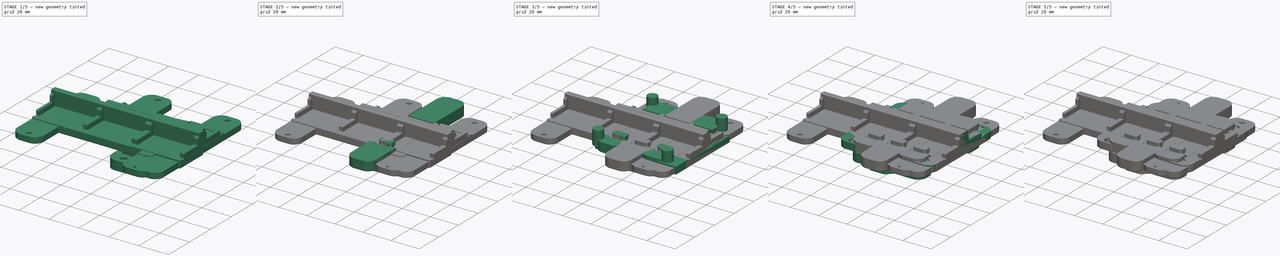
[diagram: build sequence overview — one tinted view per stage of 5, left to right]
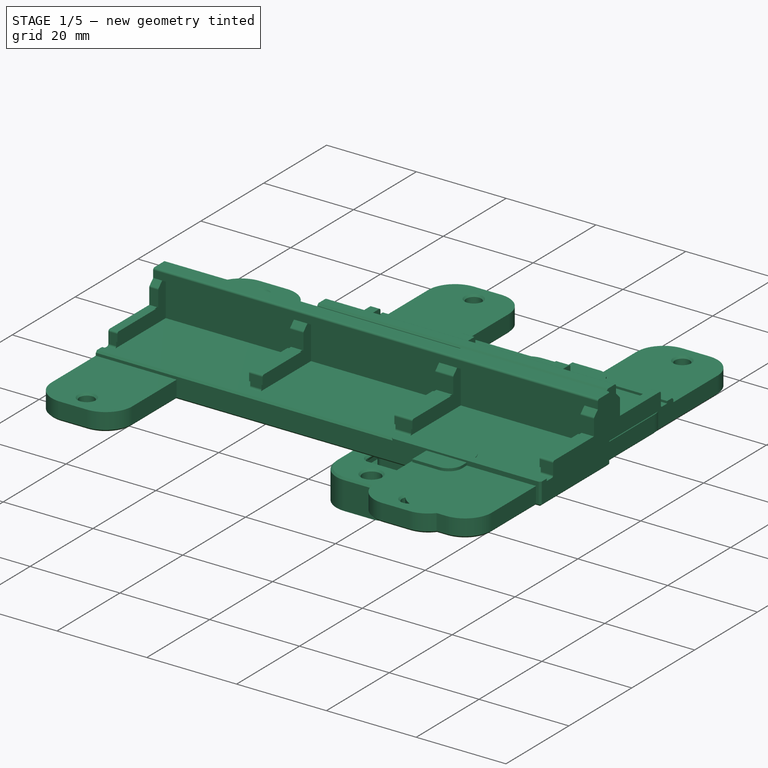
[diagram: stage 1 of 5 — iso view after this stage's code; geometry added in this stage tinted green]
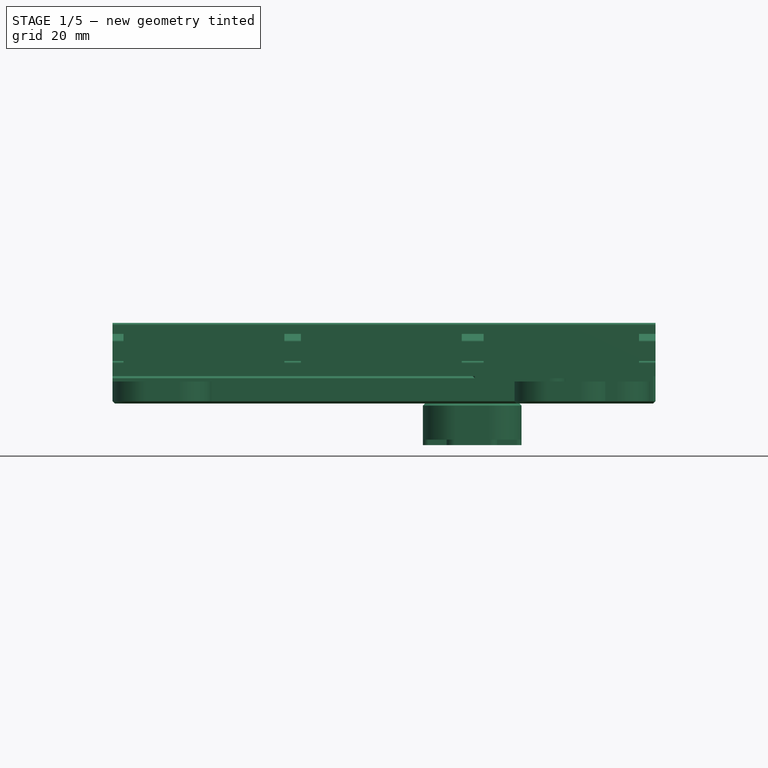
[diagram: stage 1 of 5 — front view after this stage's code; geometry added in this stage tinted green]
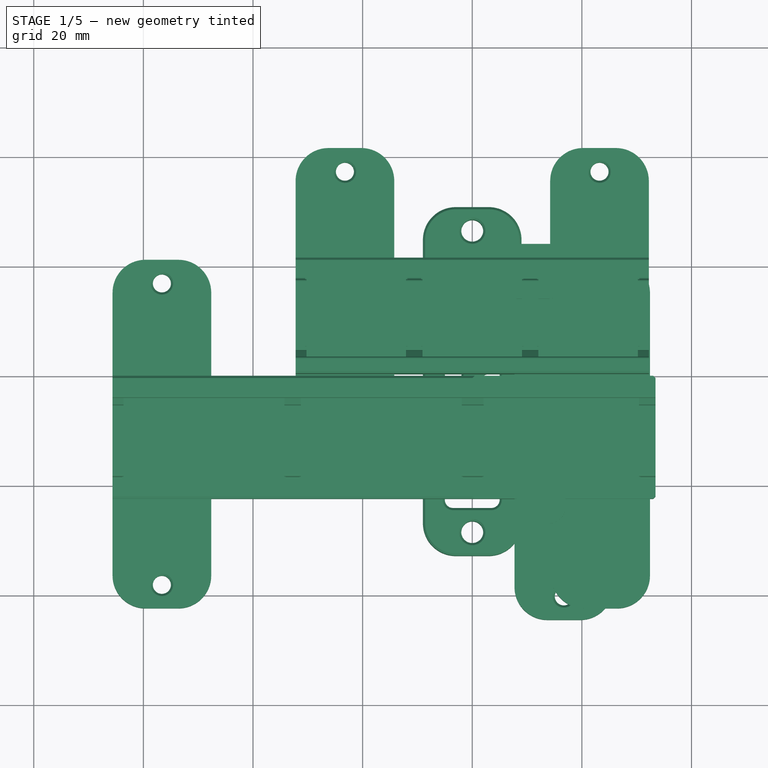
[diagram: stage 1 of 5 — top view after this stage's code; geometry added in this stage tinted green]
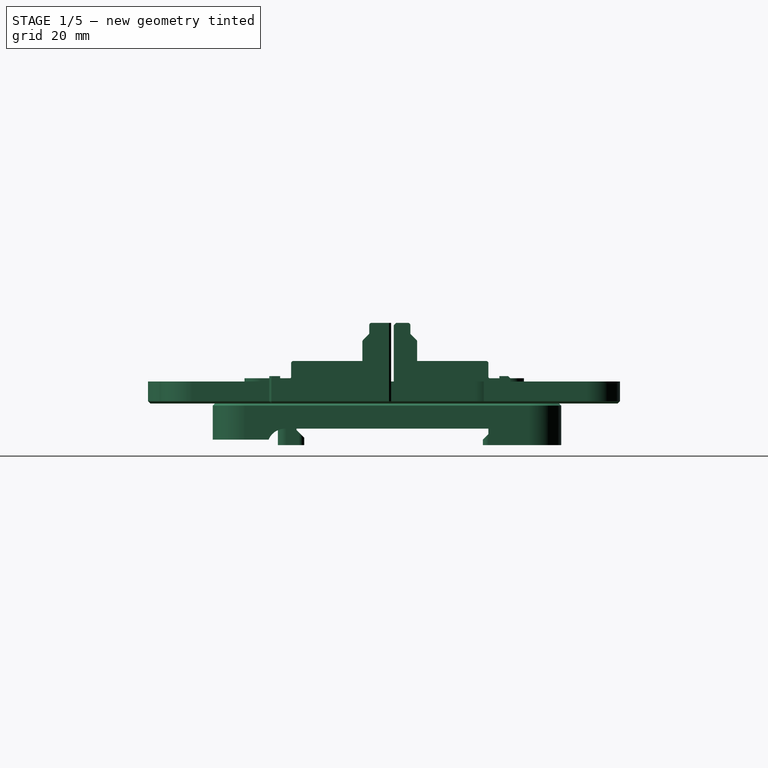
[diagram: stage 1 of 5 — right view after this stage's code; geometry added in this stage tinted green]
FCSTD DOCUMENT  (FreeCAD 0.19R24366 (Git))
Label: din-mounter-alt
License: Other
LicenseURL: GPL3
objects: Part::Feature×23, Part::Box×21, Part::MultiFuse×17, Part::Cylinder×16, Part::Chamfer×15, Part::Cut×10, Part::Fillet×6, PartDesign::FeatureBase×4, Sketcher::SketchObject×4, PartDesign::Chamfer×4, PartDesign::Body×4, PartDesign::Pad×3, PartDesign::Fillet×3, PartDesign::Pocket×1
note: 142 computed .brp shape members not serialized (recipe doc carries the construction recipe); baked Part::Feature solids carry a one-line shape summary decoded from their .brp

FEATURE [Part::Feature] Cut002001010001  label="cable-mounter001"
  shape: bbox 18 x 99 x 7.603 mm, 279 faces (baked)
FEATURE [Part::Box] Box019  label="Cube019"
  AttacherType = Attacher::AttachEngine3D
  Height = 4.6
  Length = 9
  Placement = pos=(8,-27,0) rot=(0,0,1;0rad)
  Width = 10
FEATURE [Part::Box] Box020  label="Cube020"
  AttacherType = Attacher::AttachEngine3D
  Height = 4.6
  Length = 9
  Placement = pos=(8,14,0) rot=(0,0,1;0rad)
  Width = 10
FEATURE [Part::MultiFuse] Fusion006002011004053036004001028003005019004
  Shapes = -> [Box020,Box019]
FEATURE [Part::Fillet] Fillet005
  Base = -> Fusion006002011004053036004001028003005019004
  Edges = 4 edges r=3: [Edge5,Edge7,Edge17,Edge19]
FEATURE [Part::Chamfer] Chamfer013002
  Base = -> Fillet005
  Edges = 10 edges r=0.4: [Edge3,Edge10,Edge12,Edge14,Edge16,Edge21,Edge28,Edge30,Edge32,Edge34]
FEATURE [PartDesign::FeatureBase] BaseFeature
  BaseFeature = -> Body004012001
FEATURE [Sketcher::SketchObject] Sketch
  FullyConstrained = true
  MapMode = 5
  Placement = pos=(0,0,0.0031494) rot=(0,0,1;0rad)
  Support = -> [BaseFeature]
  sketch-geometry (2):
    g0: Circle CenterX=0 CenterY=26.5 CenterZ=0 NormalX=0 NormalY=0 NormalZ=1 AngleXU=0 Radius=2
    g1: Circle CenterX=0 CenterY=-28.5 CenterZ=0 NormalX=0 NormalY=0 NormalZ=1 AngleXU=0 Radius=2
  constraints (6):
    c: PointOnObject(g0,g-2)
    c: PointOnObject(g1,g-2)
    c: DistanceY(g1,g0) = 55
    c: Equal(g1,g0)
    c: Radius(g0) = 2
    c: DistanceY(g1,g-1) = 28.5
FEATURE [PartDesign::Pocket] Pocket
  BaseFeature = -> BaseFeature
  Length = 5
  Length2 = 100
  Profile = -> Sketch
  Type = 1
FEATURE [PartDesign::Chamfer] Chamfer013003
  Angle = 45
  Base = -> Pocket [Edge17,Edge16]
  BaseFeature = -> Pocket
  ChamferType = 0
  FlipDirection = false
  Size = 0.4
  Size2 = 1
  SupportTransform = false
FEATURE [PartDesign::Body] Body  label="generic-din-addon"
  BaseFeature = -> Body004012001
  Group = -> [BaseFeature,Sketch,Pocket,Chamfer013003]
  Origin = -> Origin
  Tip = -> Chamfer013003
FEATURE [Part::Feature] Fusion006002011004053036004001028003005019006002002001  label="relay-mounter"
  shape: bbox 63.6 x 53.7 x 7.603 mm, 374 faces (baked)
FEATURE [Part::Feature] Body004012005001  label="wago5-slot-base"
  shape: bbox 33.35 x 22.25 x 14.7 mm, 45 faces (baked)
FEATURE [Part::Feature] Body004012005002001  label="wago3-slot-base"
  shape: bbox 22.15 x 21.26 x 14.7 mm, 41 faces (baked)
FEATURE [Part::Feature] Fusion006002011004053036004001028003005019006002002002001  label="wago555-base"
  shape: bbox 98.05 x 22.25 x 14.7 mm, 87 faces (baked)
FEATURE [PartDesign::FeatureBase] BaseFeature001
  BaseFeature = -> Fusion006002011004053036004001028003005019006002002002001
FEATURE [Sketcher::SketchObject] Sketch001
  ExternalGeometry = -> [BaseFeature001]
  FullyConstrained = true
  MapMode = 5
  Placement = pos=(0,0,-5.89e-14) rot=(1,0,0;3.14159rad)
  Support = -> [BaseFeature001]
  sketch-geometry (12):
    g0: LineSegment StartX=-65.625 StartY=42.4914 StartZ=0 EndX=-47.625 EndY=42.4914 EndZ=0
    g1: LineSegment StartX=-47.625 StartY=42.4914 StartZ=0 EndX=-47.625 EndY=-21.1086 EndZ=0
    g2: LineSegment StartX=-47.625 StartY=-21.1086 StartZ=0 EndX=-65.625 EndY=-21.1086 EndZ=0
    g3: LineSegment StartX=-65.625 StartY=-21.1086 StartZ=0 EndX=-65.625 EndY=42.4914 EndZ=0
    g4: LineSegment StartX=14.425 StartY=42.4914 StartZ=0 EndX=32.425 EndY=42.4914 EndZ=0
    g5: LineSegment StartX=32.425 StartY=42.4914 StartZ=0 EndX=32.425 EndY=-21.1086 EndZ=0
    g6: LineSegment StartX=32.425 StartY=-21.1086 StartZ=0 EndX=14.425 EndY=-21.1086 EndZ=0
    g7: LineSegment StartX=14.425 StartY=-21.1086 StartZ=0 EndX=14.425 EndY=42.4914 EndZ=0
    g8: Circle CenterX=-56.625 CenterY=38.1914 CenterZ=0 NormalX=0 NormalY=0 NormalZ=1 AngleXU=0 Radius=1.65
    g9: Circle CenterX=-56.625 CenterY=-16.8086 CenterZ=0 NormalX=0 NormalY=0 NormalZ=1 AngleXU=0 Radius=1.65
    g10: Circle CenterX=23.425 CenterY=38.1914 CenterZ=0 NormalX=0 NormalY=0 NormalZ=1 AngleXU=0 Radius=1.65
    g11: Circle CenterX=23.425 CenterY=-16.8086 CenterZ=0 NormalX=0 NormalY=0 NormalZ=1 AngleXU=0 Radius=1.65
  constraints (36):
    c: Coincident(g0,g1)
    c: Coincident(g1,g2)
    c: Coincident(g2,g3)
    c: Coincident(g3,g0)
    c: Horizontal(g0)
    c: Horizontal(g2)
    c: Vertical(g1)
    c: Vertical(g3)
    c: Coincident(g4,g5)
    c: Coincident(g5,g6)
    c: Coincident(g6,g7)
    c: Coincident(g7,g4)
    c: Horizontal(g4)
    c: Horizontal(g6)
    c: Vertical(g5)
    c: Vertical(g7)
    c: Horizontal(g6,g1)
    c: Horizontal(g0,g4)
    c: Equal(g0,g4)
    c: Vertical(g0,g-3)
    c: Vertical(g4,g-4)
    c: DistanceY(g3,g3) = 63.6
    c: Horizontal(g11,g9)
    c: Horizontal(g8,g10)
    c: Vertical(g8,g9)
    c: Vertical(g11,g10)
    c: DistanceX(g0,g8) = 9
    c: DistanceX(g10,g4) = 9
    c: DistanceY(g8,g0) = 4.3
    c: DistanceY(g2,g9) = 4.3
    c: Equal(g9,g8)
    c: Equal(g8,g11)
    c: Equal(g11,g10)
    c: DistanceX(g4,g4) = 18
    c: Radius(g8) = 1.65
    c: DistanceY(g-3,g0) = 20
FEATURE [PartDesign::Pad] Pad
  BaseFeature = -> BaseFeature001
  Direction = (1,1,1)
  Length = 4
  Length2 = 100
  Profile = -> Sketch001
  Reversed = true
  Type = 0
FEATURE [PartDesign::Fillet] Fillet006
  Base = -> Pad [Edge219,Edge116,Edge121,Edge221,Edge215,Edge204,Edge213,Edge225]
  BaseFeature = -> Pad
  Radius = 6
  Refine = true
  SupportTransform = false
FEATURE [PartDesign::Chamfer] Chamfer013004
  Angle = 45
  Base = -> Fillet006 [Face110,Edge10,Edge17,Edge42,Edge228,Edge27,Edge103]
  BaseFeature = -> Fillet006
  ChamferType = 0
  FlipDirection = false
  Size = 0.4
  Size2 = 1
  SupportTransform = false
FEATURE [PartDesign::Body] Body004012005002002  label="wago555-din-mounter"
  BaseFeature = -> Fusion006002011004053036004001028003005019006002002002001
  Group = -> [BaseFeature001,Sketch001,Pad,Fillet006,Chamfer013004]
  Origin = -> Origin001
  Tip = -> Chamfer013004
FEATURE [Part::Feature] Fusion006002011004053036004001028003005019006002002002002001  label="wago333-base"
  shape: bbox 64.45 x 21.26 x 14.7 mm, 87 faces (baked)
FEATURE [PartDesign::FeatureBase] BaseFeature002
  BaseFeature = -> Fusion006002011004053036004001028003005019006002002002002001
FEATURE [Sketcher::SketchObject] Sketch002
  ExternalGeometry = -> [BaseFeature002]
  FullyConstrained = true
  MapMode = 5
  Placement = pos=(0,0,3.61e-14) rot=(1,0,0;3.14159rad)
  Support = -> [BaseFeature002]
  sketch-geometry (12):
    g0: LineSegment StartX=-32.23 StartY=22.1 StartZ=0 EndX=-14.23 EndY=22.1 EndZ=0
    g1: LineSegment StartX=-14.23 StartY=22.1 StartZ=0 EndX=-14.23 EndY=-41.5 EndZ=0
    g2: LineSegment StartX=-14.23 StartY=-41.5 StartZ=0 EndX=-32.23 EndY=-41.5 EndZ=0
    g3: LineSegment StartX=-32.23 StartY=-41.5 StartZ=0 EndX=-32.23 EndY=22.1 EndZ=0
    g4: LineSegment StartX=14.22 StartY=22.1 StartZ=0 EndX=32.22 EndY=22.1 EndZ=0
    g5: LineSegment StartX=32.22 StartY=22.1 StartZ=0 EndX=32.22 EndY=-41.5 EndZ=0
    g6: LineSegment StartX=32.22 StartY=-41.5 StartZ=0 EndX=14.22 EndY=-41.5 EndZ=0
    g7: LineSegment StartX=14.22 StartY=-41.5 StartZ=0 EndX=14.22 EndY=22.1 EndZ=0
    g8: Circle CenterX=-23.23 CenterY=17.8 CenterZ=0 NormalX=0 NormalY=0 NormalZ=1 AngleXU=0 Radius=1.65
    g9: Circle CenterX=-23.23 CenterY=-37.2 CenterZ=0 NormalX=0 NormalY=0 NormalZ=1 AngleXU=0 Radius=1.65
    g10: Circle CenterX=23.22 CenterY=-37.2 CenterZ=0 NormalX=0 NormalY=0 NormalZ=1 AngleXU=0 Radius=1.65
    g11: Circle CenterX=23.22 CenterY=17.8 CenterZ=0 NormalX=0 NormalY=0 NormalZ=1 AngleXU=0 Radius=1.65
  constraints (36):
    c: Coincident(g0,g1)
    c: Coincident(g1,g2)
    c: Coincident(g2,g3)
    c: Coincident(g3,g0)
    c: Horizontal(g0)
    c: Horizontal(g2)
    c: Vertical(g1)
    c: Vertical(g3)
    c: Coincident(g4,g5)
    c: Coincident(g5,g6)
    c: Coincident(g6,g7)
    c: Coincident(g7,g4)
    c: Horizontal(g4)
    c: Horizontal(g6)
    c: Vertical(g5)
    c: Vertical(g7)
    c: Horizontal(g0,g4)
    c: Horizontal(g1,g6)
    c: Vertical(g-3,g0)
    c: Vertical(g4,g-4)
    c: Equal(g4,g0)
    c: DistanceX(g0,g0) = 18
    c: DistanceY(g3,g3) = 63.6
    c: DistanceY(g2,g-3) = 20
    c: Horizontal(g8,g11)
    c: Horizontal(g9,g10)
    c: Vertical(g10,g11)
    c: Vertical(g8,g9)
    c: Equal(g8,g9)
    c: Equal(g9,g10)
    c: Equal(g10,g11)
    c: DistanceX(g0,g8) = 9
    c: DistanceX(g11,g4) = 9
    c: DistanceY(g8,g0) = 4.3
    c: DistanceY(g2,g9) = 4.3
    c: Radius(g11) = 1.65
FEATURE [PartDesign::Pad] Pad001
  BaseFeature = -> BaseFeature002
  Direction = (1,1,1)
  Length = 4
  Length2 = 100
  Profile = -> Sketch002
  Reversed = true
  Type = 0
FEATURE [PartDesign::Fillet] Fillet007
  Base = -> Pad001 [Edge291,Edge286,Edge283,Edge278,Edge273,Edge268,Edge263,Edge295]
  BaseFeature = -> Pad001
  Radius = 6
  Refine = true
  SupportTransform = false
FEATURE [PartDesign::Chamfer] Chamfer013005
  Angle = 45
  Base = -> Fillet007 [Face110,Edge103,Edge21,Edge45,Edge17,Edge10,Edge226]
  BaseFeature = -> Fillet007
  ChamferType = 0
  FlipDirection = false
  Size = 0.4
  Size2 = 1
  SupportTransform = false
FEATURE [PartDesign::Body] Body004012005002003  label="wago333-din-mounter"
  BaseFeature = -> Fusion006002011004053036004001028003005019006002002002002001
  Group = -> [BaseFeature002,Sketch002,Pad001,Fillet007,Chamfer013005]
  Origin = -> Origin002
  Tip = -> Chamfer013005
FEATURE [PartDesign::FeatureBase] BaseFeature003
  BaseFeature = -> Body004012005001
FEATURE [Sketcher::SketchObject] Sketch003
  ExternalGeometry = -> [BaseFeature003]
  FullyConstrained = true
  MapMode = 5
  Placement = pos=(0,0,2e-15) rot=(1,0,0;3.14159rad)
  Support = -> [BaseFeature003]
  sketch-geometry (10):
    g0: LineSegment StartX=7.7125 StartY=18.6 StartZ=0 EndX=25.7125 EndY=18.6 EndZ=0
    g1: LineSegment StartX=25.7125 StartY=18.6 StartZ=0 EndX=25.7125 EndY=44.6 EndZ=0
    g2: LineSegment StartX=25.7125 StartY=44.6 StartZ=0 EndX=7.7125 EndY=44.6 EndZ=0
    g3: LineSegment StartX=7.7125 StartY=44.6 StartZ=0 EndX=7.7125 EndY=18.6 EndZ=0
    g4: LineSegment StartX=7.7125 StartY=1 StartZ=0 EndX=25.7125 EndY=1 EndZ=0
    g5: LineSegment StartX=25.7125 StartY=1 StartZ=0 EndX=25.7125 EndY=-19 EndZ=0
    g6: LineSegment StartX=25.7125 StartY=-19 StartZ=0 EndX=7.7125 EndY=-19 EndZ=0
    g7: LineSegment StartX=7.7125 StartY=-19 StartZ=0 EndX=7.7125 EndY=1 EndZ=0
    g8: Circle CenterX=16.7125 CenterY=40.3 CenterZ=0 NormalX=0 NormalY=0 NormalZ=1 AngleXU=0 Radius=1.65
    g9: Circle CenterX=16.7125 CenterY=-14.7 CenterZ=0 NormalX=0 NormalY=0 NormalZ=1 AngleXU=0 Radius=1.65
  constraints (31):
    c: DistanceX(g-1,g-3) = 33.425
    c: Coincident(g0,g1)
    c: Coincident(g1,g2)
    c: Coincident(g2,g3)
    c: Coincident(g3,g0)
    c: Horizontal(g0)
    c: Horizontal(g2)
    c: Vertical(g1)
    c: Vertical(g3)
    c: Coincident(g4,g5)
    c: Coincident(g5,g6)
    c: Coincident(g6,g7)
    c: Coincident(g7,g4)
    c: Horizontal(g4)
    c: Horizontal(g6)
    c: Vertical(g5)
    c: Vertical(g7)
    c: Vertical(g4,g0)
    c: Vertical(g4,g0)
    c: DistanceX(g4,g4) = 18
    c: DistanceX(g4,g-3) = 7.7125
    c: DistanceY(g5,g1) = 63.6
    c: DistanceY(g1,g1) = 26
    c: DistanceY(g5,g5) = 20
    c: DistanceY(g-1,g4) = 1
    c: Vertical(g9,g8)
    c: DistanceX(g6,g9) = 9
    c: DistanceY(g6,g9) = 4.3
    c: DistanceY(g8,g1) = 4.3
    c: Equal(g8,g9)
    c: Radius(g9) = 1.65
FEATURE [PartDesign::Pad] Pad002
  BaseFeature = -> BaseFeature003
  Direction = (1,1,1)
  Length = 4
  Length2 = 100
  Profile = -> Sketch003
  Reversed = true
  Type = 0
FEATURE [PartDesign::Fillet] Fillet008
  Base = -> Pad002 [Edge151,Edge157,Edge130,Edge125]
  BaseFeature = -> Pad002
  Radius = 6
  Refine = true
  SupportTransform = false
FEATURE [PartDesign::Chamfer] Chamfer013006
  Angle = 45
  Base = -> Fillet008 [Face44,Edge18,Edge8,Edge149,Edge141,Edge13,Edge137]
  BaseFeature = -> Fillet008
  ChamferType = 0
  FlipDirection = false
  Size = 0.4
  Size2 = 1
  SupportTransform = false
FEATURE [PartDesign::Body] Body004012005002004  label="wago-005-din-mounter"
  BaseFeature = -> Body004012005001
  Group = -> [BaseFeature003,Sketch003,Pad002,Fillet008,Chamfer013006]
  Origin = -> Origin003
  Tip = -> Chamfer013006
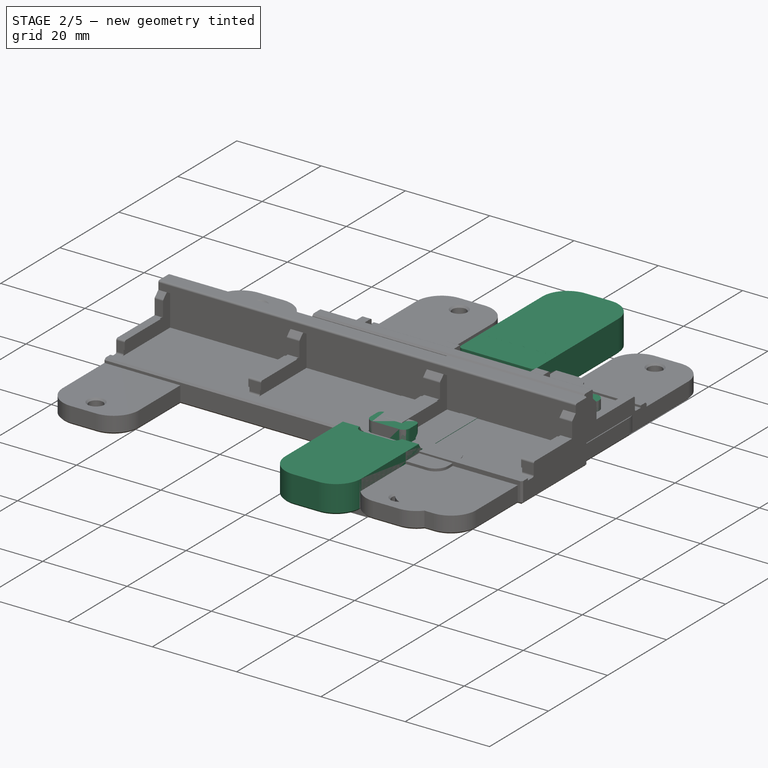
[diagram: stage 2 of 5 — iso view after this stage's code; geometry added in this stage tinted green]
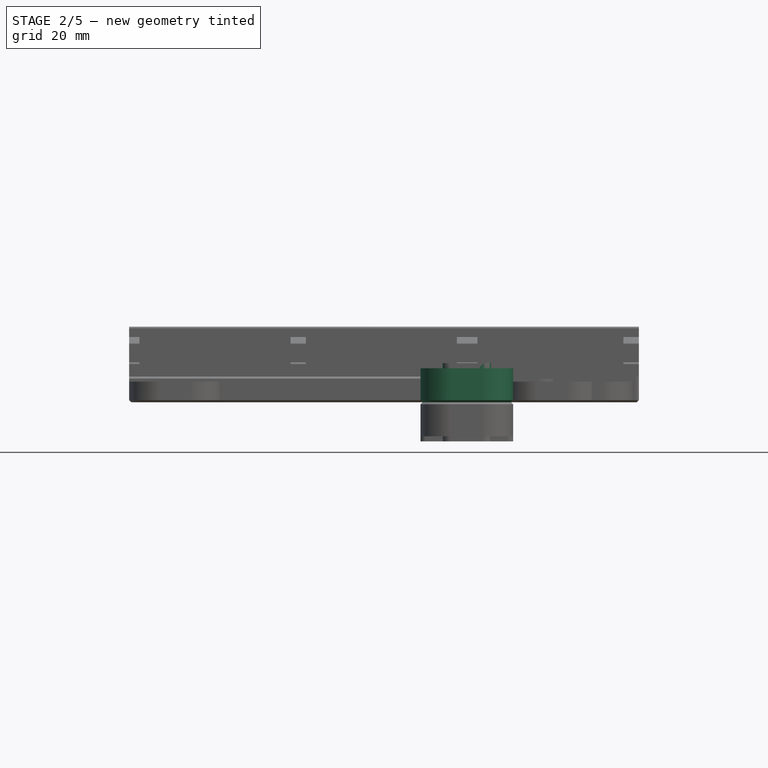
[diagram: stage 2 of 5 — front view after this stage's code; geometry added in this stage tinted green]
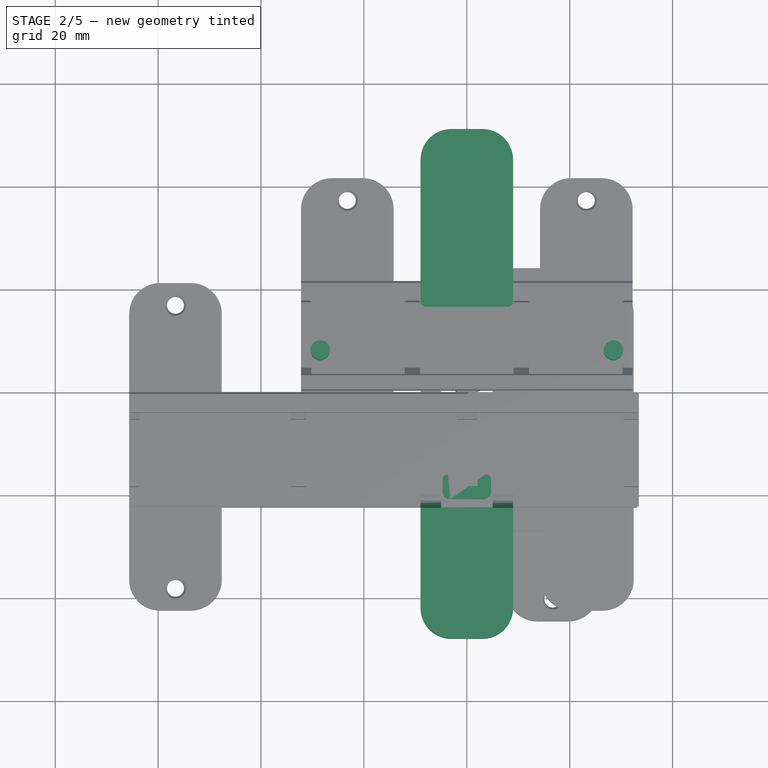
[diagram: stage 2 of 5 — top view after this stage's code; geometry added in this stage tinted green]
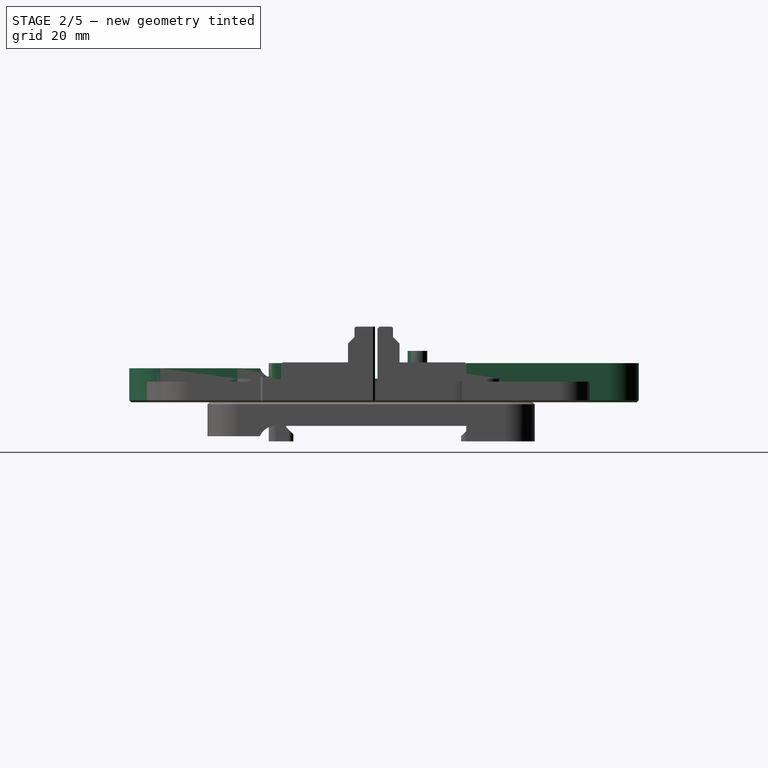
[diagram: stage 2 of 5 — right view after this stage's code; geometry added in this stage tinted green]
FEATURE [Part::Feature] Body004012002  label="din-mounter-template-type-008"
  Placement = pos=(-16,0,0) rot=(0,1,0;3.14159rad)
  shape: bbox 18 x 63.6 x 7.6 mm, 153 faces (baked)
FEATURE [Part::Feature] Body004012003  label="din-mounter-template-type-009"
  Placement = pos=(16,0,0) rot=(0,1,0;3.14159rad)
  shape: bbox 18 x 63.6 x 7.6 mm, 153 faces (baked)
FEATURE [Part::Cylinder] Cylinder014
  Angle = 360
  AttacherType = Attacher::AttachEngine3D
  Height = 10
  Placement = pos=(-28.5,8,0) rot=(0,0,1;0rad)
  Radius = 1.9
FEATURE [Part::Cylinder] Cylinder015
  Angle = 360
  AttacherType = Attacher::AttachEngine3D
  Height = 10
  Placement = pos=(28.5,8,0) rot=(0,0,1;0rad)
  Radius = 1.9
FEATURE [Part::Box] Box013  label="Cube013"
  AttacherType = Attacher::AttachEngine3D
  Height = 4.6
  Length = 15
  Placement = pos=(-7.5,20,0) rot=(0,0,1;0rad)
  Width = 5
FEATURE [Part::Box] Box014  label="Cube014"
  AttacherType = Attacher::AttachEngine3D
  Height = 4.6
  Length = 15
  Placement = pos=(-7.5,-27,0) rot=(0,0,1;0rad)
  Width = 5
FEATURE [Part::MultiFuse] Fusion006002011004053036004001028003005015
  Shapes = -> [Cylinder015,Cylinder014]
FEATURE [Part::Feature] Body004012004  label="din-mounter-template-type-010"
  Placement = pos=(0,0,0) rot=(0,1,0;3.14159rad)
  shape: bbox 18 x 63.6 x 7.6 mm, 153 faces (baked)
FEATURE [Part::Box] Box015  label="Cube015"
  AttacherType = Attacher::AttachEngine3D
  Height = 6.6
  Length = 18
  Placement = pos=(-9,-48,0) rot=(0,0,1;0rad)
  Width = 22
FEATURE [Part::Box] Box016  label="Cube016"
  AttacherType = Attacher::AttachEngine3D
  Height = 7.6
  Length = 18
  Placement = pos=(-9,24,0) rot=(0,0,1;0rad)
  Width = 27
FEATURE [Part::MultiFuse] Fusion006002011004053036004001028003005017
  Shapes = -> [Box015,Box016]
FEATURE [Part::Fillet] Fillet004
  Base = -> Fusion006002011004053036004001028003005017
  Edges = 4 edges r=6: [Edge1,Edge5,Edge15,Edge19]
FEATURE [Part::Chamfer] Chamfer011
  Base = -> Fillet004
  Edges = 12 edges r=0.4: [Edge3,Edge10,Edge12,Edge14,Edge15,Edge16,Edge21,Edge28,Edge30,Edge32,Edge33,Edge34]
FEATURE [Part::MultiFuse] Fusion006002011004053036004001028003005018
  Shapes = -> [Body004012004,Chamfer011]
FEATURE [Part::Box] Box017  label="Cube017"
  AttacherType = Attacher::AttachEngine3D
  Height = 5
  Length = 14
  Placement = pos=(-7,0,0) rot=(0,0,1;0rad)
  Width = 3
FEATURE [Part::Box] Box018  label="Cube018"
  AttacherType = Attacher::AttachEngine3D
  Height = 3
  Length = 10
  Placement = pos=(-5,0,0) rot=(0,0,1;0rad)
  Width = 3
FEATURE [Part::Cut] Cut002001009
  Base = -> Box017
  Tool = -> Box018
FEATURE [Part::Chamfer] Chamfer012
  Base = -> Cut002001009
  Edges = 2 edges r=2: [Edge2,Edge13]
FEATURE [Part::Chamfer] Chamfer013
  Base = -> Chamfer012
  Edges = 2 edges r=1: [Edge29,Edge30]
FEATURE [Part::Feature] Chamfer013001
  Placement = pos=(-1.5,1.5,0) rot=(0,0,-1;1.5708rad)
  shape: bbox 3 x 14 x 5 mm, 14 faces (baked)
FEATURE [Part::MultiFuse] Fusion006002011004053036004001028003005019
  Placement = pos=(0,25.5,0) rot=(0,0,1;0rad)
  Shapes = -> [Chamfer013001,Chamfer013]
FEATURE [Part::Feature] Fusion006002011004053036004001028003005019001
  Placement = pos=(0,-37.5,0) rot=(0,0,1;0rad)
  shape: bbox 14 x 14 x 5 mm, 38 faces (baked)
FEATURE [Part::Feature] Fusion006002011004053036004001028003005019002
  Placement = pos=(0,39.5,0) rot=(0,0,1;0rad)
  shape: bbox 14 x 14 x 5 mm, 38 faces (baked)
FEATURE [Part::MultiFuse] Fusion006002011004053036004001028003005019003
  Placement = pos=(0,0,-0.5) rot=(0,0,1;0rad)
  Shapes = -> [Fusion006002011004053036004001028003005019002,Fusion006002011004053036004001028003005019001,Fusion006002011004053036004001028003005019]
FEATURE [Part::Cut] Cut002001010  label="cable-mounter"
  Base = -> Fusion006002011004053036004001028003005018
  Tool = -> Fusion006002011004053036004001028003005019003
FEATURE [Part::MultiFuse] Fusion006002011004053036004001028003005019005  label="cable-mounter-8mm-spacer"
  Shapes = -> [Cut002001010001,Chamfer013002]
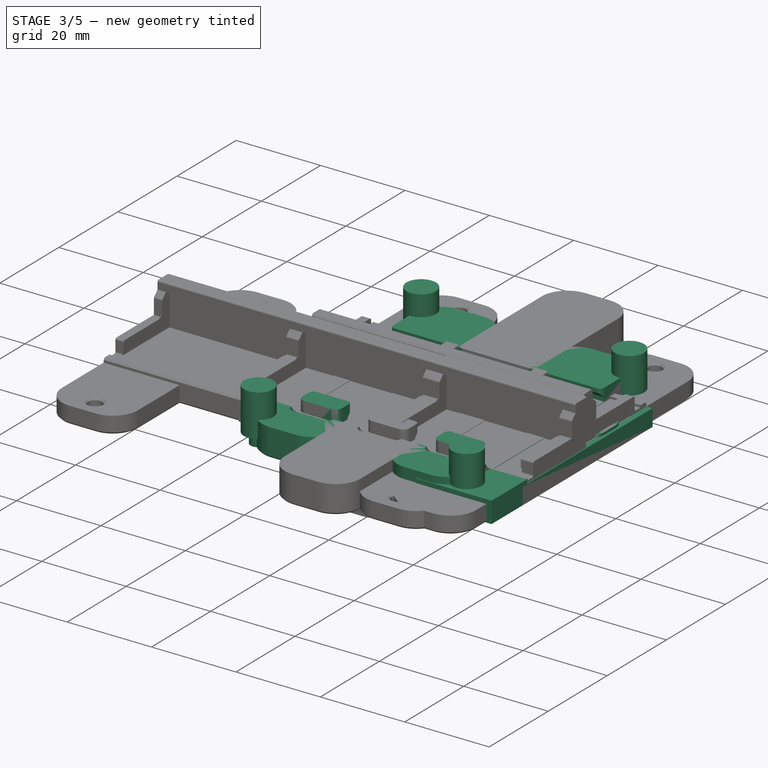
[diagram: stage 3 of 5 — iso view after this stage's code; geometry added in this stage tinted green]
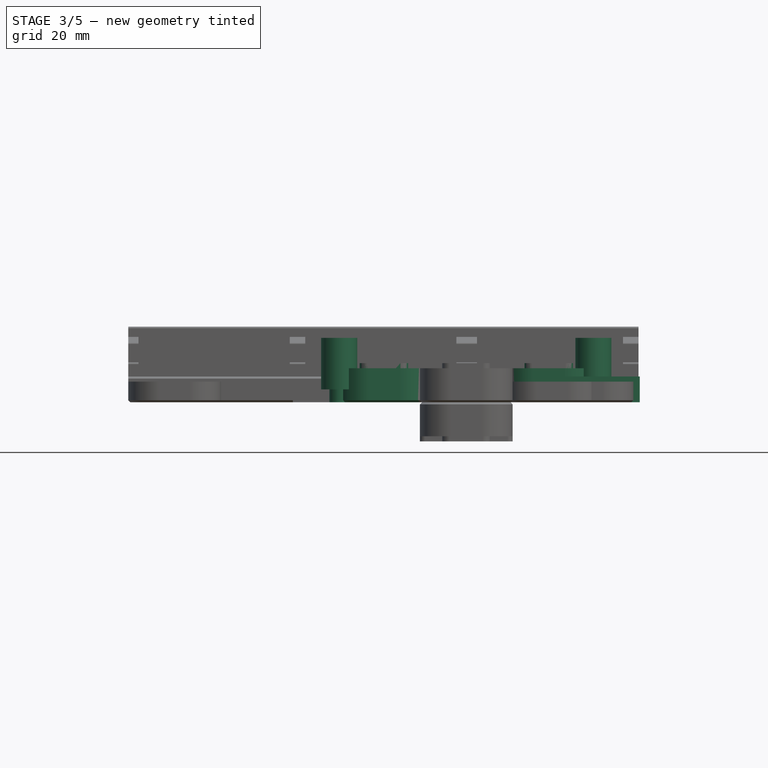
[diagram: stage 3 of 5 — front view after this stage's code; geometry added in this stage tinted green]
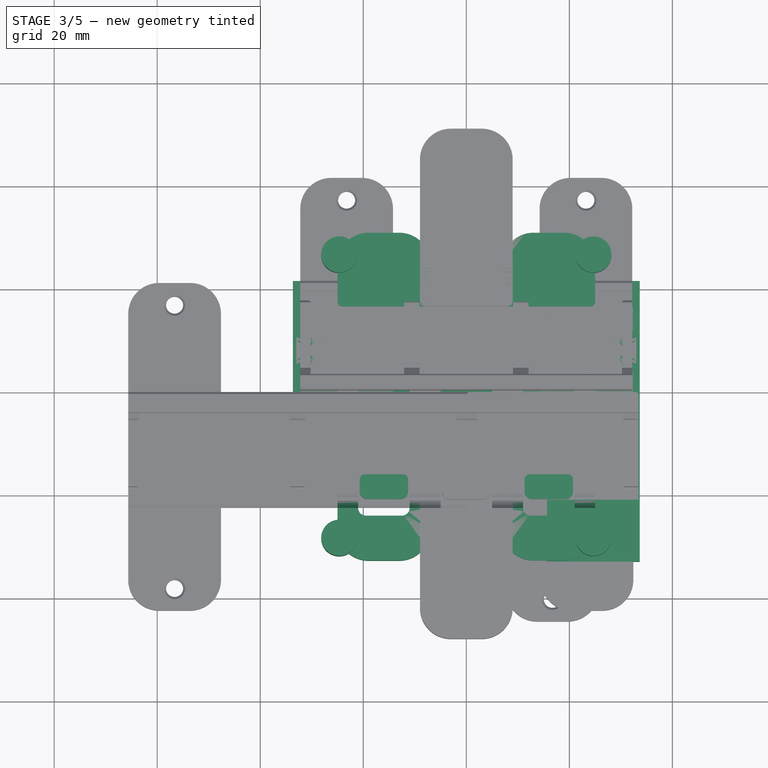
[diagram: stage 3 of 5 — top view after this stage's code; geometry added in this stage tinted green]
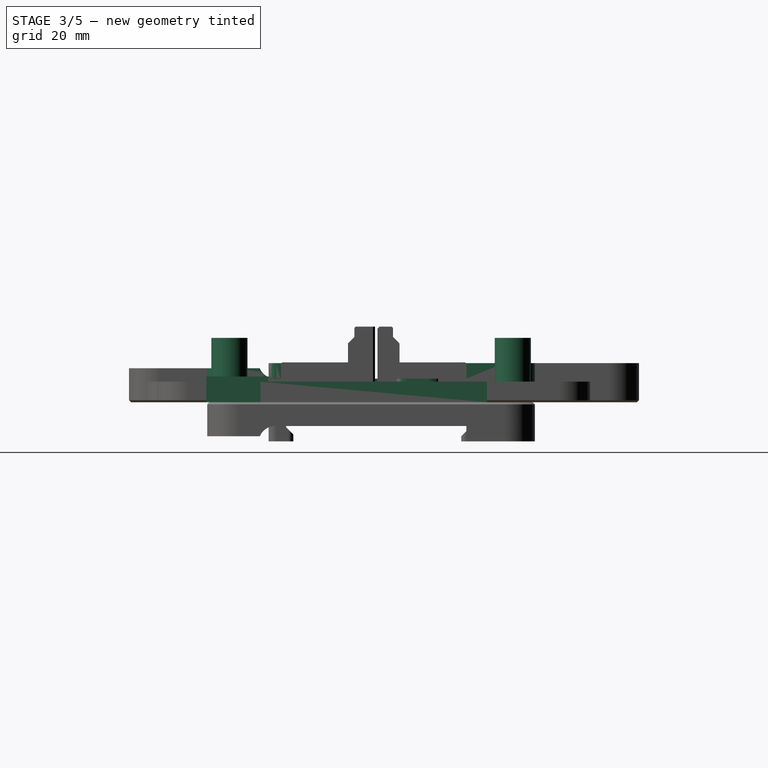
[diagram: stage 3 of 5 — right view after this stage's code; geometry added in this stage tinted green]
FEATURE [Part::Feature] Fusion002006001  label="33355-mount001"
  Placement = pos=(-28.85,-22.495,2.5) rot=(0,0,1;0rad)
  shape: bbox 67.35 x 43.99 x 12.2 mm, 171 faces (baked)
FEATURE [Part::Cylinder] Cylinder006
  Angle = 360
  AttacherType = Attacher::AttachEngine3D
  Height = 10
  Placement = pos=(24.67,-28.5,0) rot=(0,0,1;0rad)
  Radius = 1.9
FEATURE [Part::Cylinder] Cylinder007
  Angle = 360
  AttacherType = Attacher::AttachEngine3D
  Height = 10
  Placement = pos=(24.67,26.5,0) rot=(0,0,1;0rad)
  Radius = 1.9
FEATURE [Part::Box] Box009  label="Cube009"
  AttacherType = Attacher::AttachEngine3D
  Height = 5
  Length = 18
  Placement = pos=(15.67,-33,0) rot=(0,0,1;0rad)
  Width = 12
FEATURE [Part::Box] Box010  label="Cube010"
  AttacherType = Attacher::AttachEngine3D
  Height = 4
  Length = 67.34
  Placement = pos=(-33.67,-22.49,0) rot=(0,0,1;0rad)
  Width = 43.99
FEATURE [Part::Cylinder] Cylinder008
  Angle = 360
  AttacherType = Attacher::AttachEngine3D
  Height = 10
  Placement = pos=(-24.67,-28.5,0) rot=(0,0,1;0rad)
  Radius = 1.9
FEATURE [Part::Cylinder] Cylinder009
  Angle = 360
  AttacherType = Attacher::AttachEngine3D
  Height = 10
  Placement = pos=(-24.67,26.5,0) rot=(0,0,1;0rad)
  Radius = 1.9
FEATURE [Part::Cylinder] Cylinder010
  Angle = 360
  AttacherType = Attacher::AttachEngine3D
  Height = 10
  Placement = pos=(24.67,26.5,0) rot=(0,0,1;0rad)
  Radius = 3.5
FEATURE [Part::Cylinder] Cylinder011
  Angle = 360
  AttacherType = Attacher::AttachEngine3D
  Height = 10
  Placement = pos=(24.67,-28.5,0) rot=(0,0,1;0rad)
  Radius = 3.5
FEATURE [Part::Cylinder] Cylinder012
  Angle = 360
  AttacherType = Attacher::AttachEngine3D
  Height = 10
  Placement = pos=(-24.67,-28.5,0) rot=(0,0,1;0rad)
  Radius = 3.5
FEATURE [Part::Cylinder] Cylinder013
  Angle = 360
  AttacherType = Attacher::AttachEngine3D
  Height = 10
  Placement = pos=(-24.67,26.5,0) rot=(0,0,1;0rad)
  Radius = 3.5
FEATURE [Part::MultiFuse] Fusion006002011004053036004001028003005010
  Shapes = -> [Cylinder007,Cylinder006,Cylinder008,Cylinder009]
FEATURE [Part::MultiFuse] Fusion006002011004053036004001028003005011
  Placement = pos=(0,0,2.5) rot=(0,0,1;0rad)
  Shapes = -> [Cylinder013,Cylinder010,Cylinder011,Cylinder012]
FEATURE [Part::MultiFuse] Fusion006002011004053036004001028003005012
  Shapes = -> [Fusion006002011004053036004001028003005011,Fusion006002011004053036004001028003005010]
FEATURE [Part::Box] Box011  label="Cube011"
  AttacherType = Attacher::AttachEngine3D
  Height = 4.6
  Length = 9
  Placement = pos=(-33,3,0) rot=(0,0,1;0rad)
  Width = 10
FEATURE [Part::Box] Box012  label="Cube012"
  AttacherType = Attacher::AttachEngine3D
  Height = 4.6
  Length = 9
  Placement = pos=(24,3,0) rot=(0,0,1;0rad)
  Width = 10
FEATURE [Part::MultiFuse] Fusion006002011004053036004001028003005014
  Shapes = -> [Box011,Box014,Box013,Box012]
FEATURE [Part::Fillet] Fillet003
  Base = -> Fusion006002011004053036004001028003005014
  Edges = 4 edges r=3: [Edge1,Edge3,Edge41,Edge43]
FEATURE [Part::Cut] Cut002001008
  Base = -> Fillet003
  Tool = -> Fusion006002011004053036004001028003005015
FEATURE [Part::Chamfer] Chamfer010
  Base = -> Cut002001008
  Edges = 16 edges r=0.4: [Edge3,Edge11,Edge13,Edge14,Edge15,Edge17,Edge24,Edge32,Edge34,Edge35,Edge37,Edge38,Edge51,Edge53,Edge63,Edge65]
FEATURE [Part::MultiFuse] Fusion006002011004053036004001028003005016  label="buck-converter-mount"
  Shapes = -> [Chamfer010,Body004012003,Body004012002]
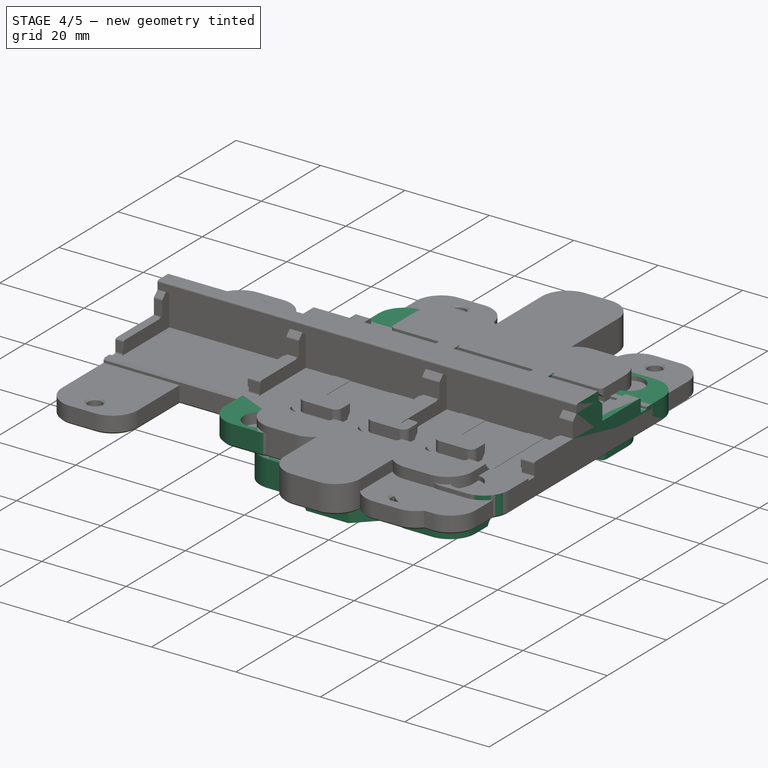
[diagram: stage 4 of 5 — iso view after this stage's code; geometry added in this stage tinted green]
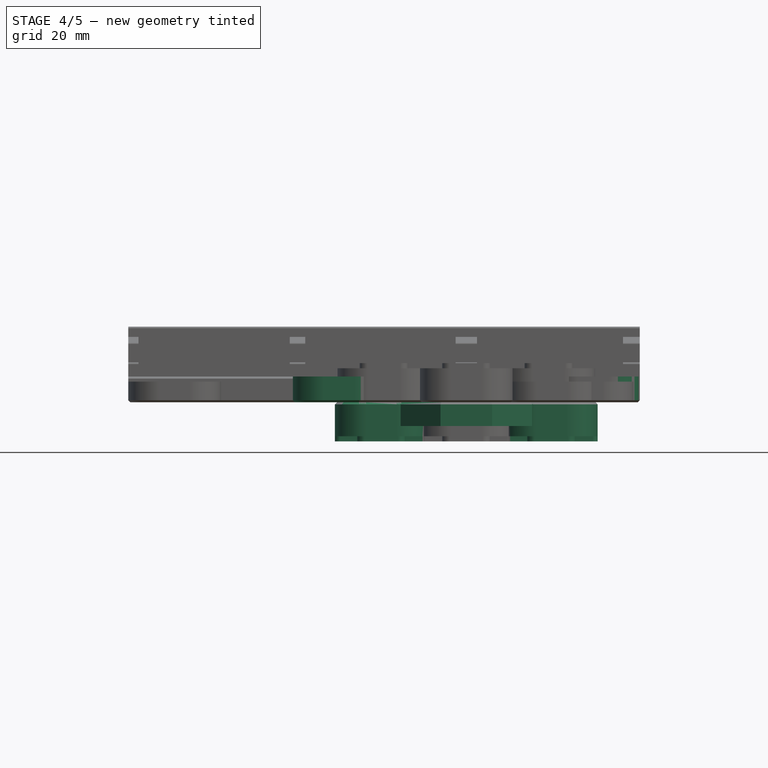
[diagram: stage 4 of 5 — front view after this stage's code; geometry added in this stage tinted green]
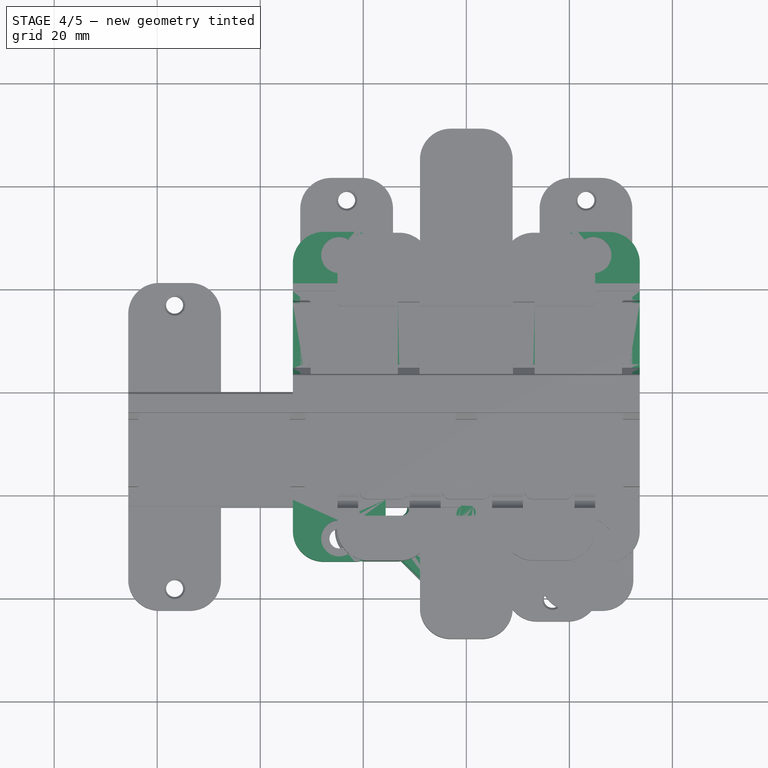
[diagram: stage 4 of 5 — top view after this stage's code; geometry added in this stage tinted green]
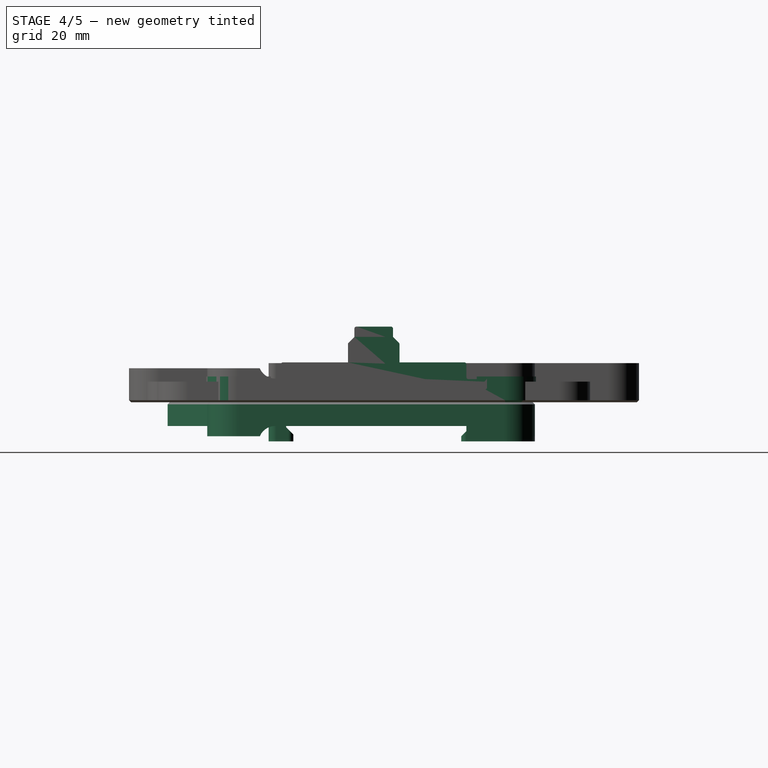
[diagram: stage 4 of 5 — right view after this stage's code; geometry added in this stage tinted green]
FEATURE [Part::Cylinder] Cylinder003
  Angle = 360
  AttacherType = Attacher::AttachEngine3D
  Height = 10
  Placement = pos=(0,-23.75,-5) rot=(0,0,1;0rad)
  Radius = 1.9
FEATURE [Part::Feature] Fusion006002011004053036004001028003005005  label="SSR0omron"
  Placement = pos=(1.5e-14,-0.42,22) rot=(0,0.707107,0.707107;3.14159rad)
  shape: bbox 45 x 64 x 22.5 mm, 84 faces (baked)
FEATURE [Part::Box] Box002  label="Cube002"
  AttacherType = Attacher::AttachEngine3D
  Height = 4.6
  Length = 11
  Placement = pos=(-5.5,-28.75,-4.6) rot=(0,0,1;0rad)
  Width = 10
FEATURE [Part::Feature] Fusion006002011004053036004001028003005007  label="RS-25-5-PSU"
  Placement = pos=(2.2e-14,-8,-5e-14) rot=(0.57735,0.57735,0.57735;2.0944rad)
  shape: bbox 51 x 91.75 x 28 mm, 292 faces (baked)
FEATURE [Part::Cylinder] Cylinder004
  Angle = 360
  AttacherType = Attacher::AttachEngine3D
  Height = 10
  Placement = pos=(0,19.5,-5) rot=(0,0,1;0rad)
  Radius = 1.9
FEATURE [Part::Cylinder] Cylinder005
  Angle = 360
  AttacherType = Attacher::AttachEngine3D
  Height = 10
  Placement = pos=(0,-35.5,-5) rot=(0,0,1;0rad)
  Radius = 1.9
FEATURE [Part::Feature] Part__Feature822001005  label="din-mounter-template-type-006"
  Placement = pos=(16.5,0,0) rot=(0,0,1;0rad)
  shape: bbox 18 x 63.6 x 7.6 mm, 163 faces (baked)
FEATURE [Part::Feature] Part__Feature822001006  label="din-mounter-template-type-007"
  Placement = pos=(-16.5,0,0) rot=(0,0,1;0rad)
  shape: bbox 18 x 63.6 x 7.6 mm, 163 faces (baked)
FEATURE [Part::Box] Box004  label="Cube004"
  AttacherType = Attacher::AttachEngine3D
  Height = 4.6
  Length = 16
  Placement = pos=(-8,14.5,-4.6) rot=(0,0,1;0rad)
  Width = 10
FEATURE [Part::Box] Box005  label="Cube005"
  AttacherType = Attacher::AttachEngine3D
  Height = 4.6
  Length = 26
  Placement = pos=(-13,-40.5,-4.6) rot=(0,0,1;0rad)
  Width = 14
FEATURE [Part::Chamfer] Chamfer006
  Base = -> Box005
  Edges = 2 edges r=8: [Edge1,Edge5]
FEATURE [Part::Cut] Cut002001005
  Base = -> Chamfer006
  Tool = -> Cylinder005
FEATURE [Part::Cut] Cut002001006
  Base = -> Box004
  Tool = -> Cylinder004
FEATURE [Part::Chamfer] Chamfer007
  Base = -> Cut002001006
  Edges = 3 edges r=0.4: [Edge7,Edge8,Edge10]
FEATURE [Part::Chamfer] Chamfer008
  Base = -> Cut002001005
  Edges = 7 edges r=0.4: [Edge1,Edge5,Edge6,Edge7,Edge8,Edge9,Edge10]
FEATURE [Part::MultiFuse] Fusion006002011004053036004001028003005008  label="5v-psu-mounter"
  Refine = true
  Shapes = -> [Chamfer008,Chamfer007,Part__Feature822001006,Part__Feature822001005]
FEATURE [Part::Box] Box006  label="Cube006"
  AttacherType = Attacher::AttachEngine3D
  Height = 5
  Length = 18
  Placement = pos=(-33.67,21,0) rot=(0,0,1;0rad)
  Width = 10
FEATURE [Part::Box] Box007  label="Cube007"
  AttacherType = Attacher::AttachEngine3D
  Height = 5
  Length = 18
  Placement = pos=(15.67,21,0) rot=(0,0,1;0rad)
  Width = 10
FEATURE [Part::Box] Box008  label="Cube008"
  AttacherType = Attacher::AttachEngine3D
  Height = 5
  Length = 18
  Placement = pos=(-33.67,-33,0) rot=(0,0,1;0rad)
  Width = 12
FEATURE [Part::MultiFuse] Fusion006002011004053036004001028003005009
  Shapes = -> [Box010,Box006,Box007,Box008,Box009]
FEATURE [Part::Fillet] Fillet002
  Base = -> Fusion006002011004053036004001028003005009
  Edges = 8 edges r=6: [Edge8,Edge22,Edge50,Edge56,Edge68,Edge70,Edge82,Edge90]
FEATURE [Part::Cut] Cut002001007
  Base = -> Fillet002
  Refine = true
  Tool = -> Fusion006002011004053036004001028003005012
FEATURE [Part::Chamfer] Chamfer009
  Base = -> Cut002001007
  Edges = 24 edges r=0.4: [Edge8,Edge14,Edge17,Edge20,Edge33,Edge37,Edge43,Edge45,Edge49,Edge58,Edge64,Edge71,Edge78,Edge80,Edge83,Edge86,Edge88,Edge92,Edge95,Edge100,Edge103,Edge106,Edge107,Edge108]
FEATURE [Part::MultiFuse] Fusion006002011004053036004001028003005013  label="wago-33355-mounter"
  Shapes = -> [Fusion002006001,Chamfer009]
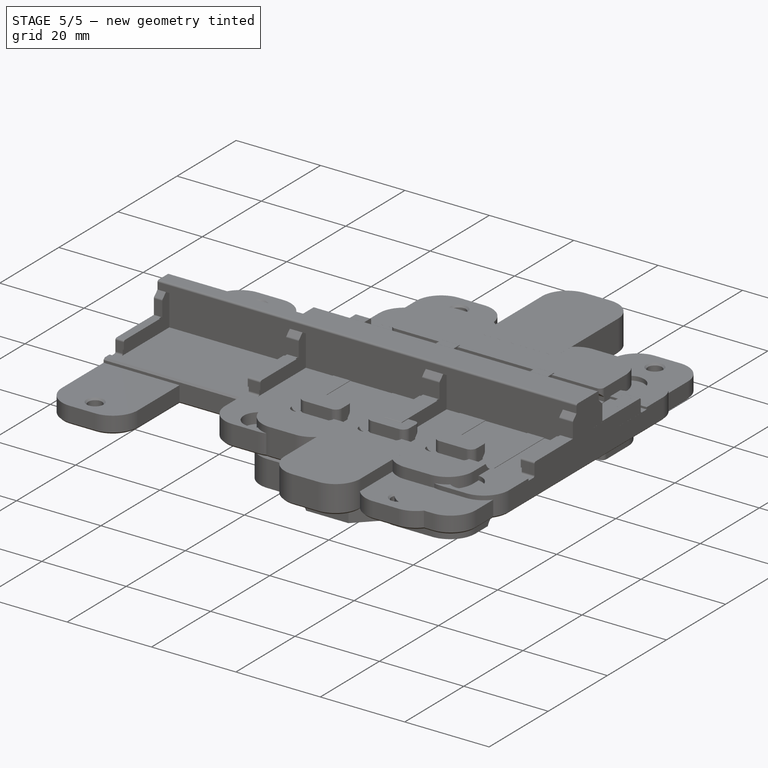
[diagram: stage 5 of 5 — iso view after this stage's code; geometry added in this stage tinted green]
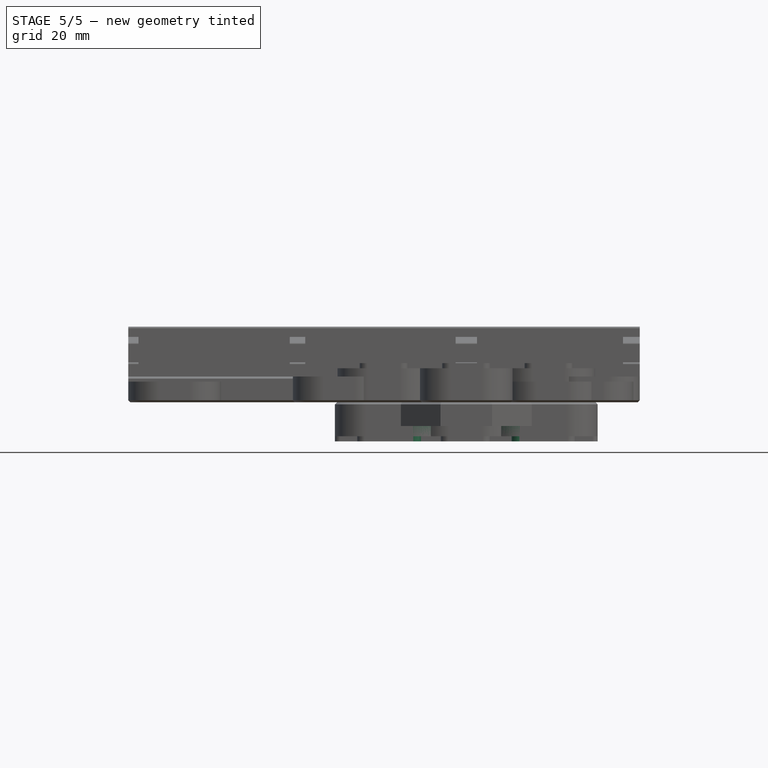
[diagram: stage 5 of 5 — front view after this stage's code; geometry added in this stage tinted green]
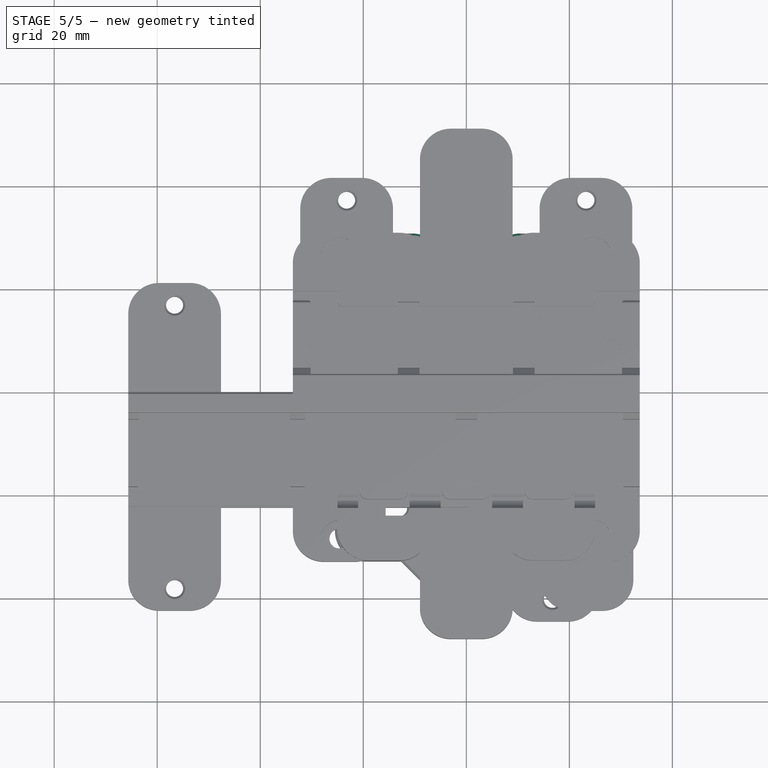
[diagram: stage 5 of 5 — top view after this stage's code; geometry added in this stage tinted green]
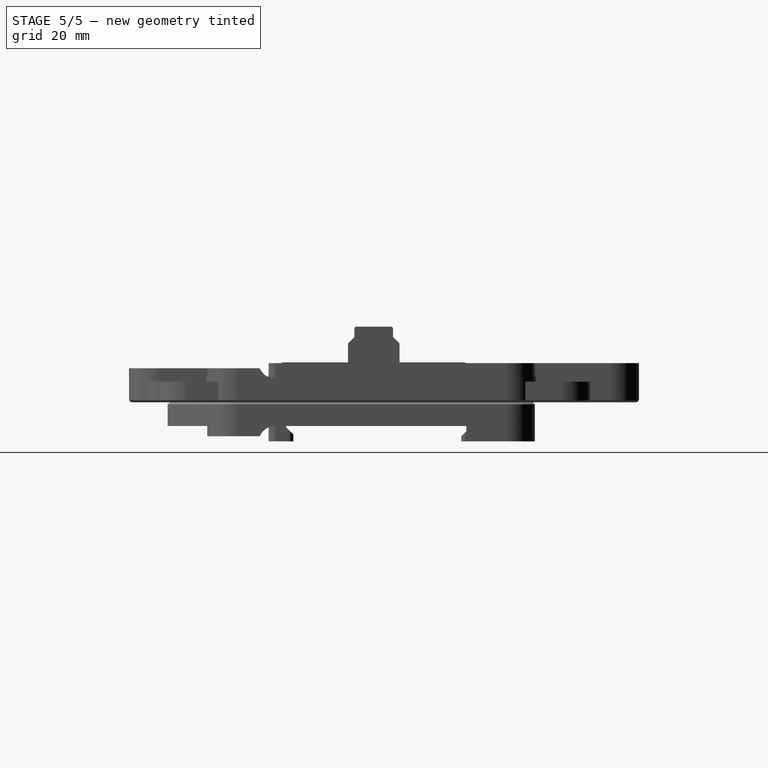
[diagram: stage 5 of 5 — right view after this stage's code; geometry added in this stage tinted green]
FEATURE [Part::Feature] Body004012001  label="din-mounter-template-type-2"
  Placement = pos=(0,0,0) rot=(0,1,0;3.14159rad)
  shape: bbox 18 x 63.6 x 7.6 mm, 153 faces (baked)
FEATURE [Part::Feature] Part__Feature822001001  label="din-mounter-template-type-1"
  shape: bbox 18 x 63.6 x 7.6 mm, 163 faces (baked)
FEATURE [Part::Feature] Cut002001001  label="sonoff-base-plate"
  Placement = pos=(-0.15,0,-1.2e-14) rot=(0,0,1;0rad)
  shape: bbox 47 x 47 x 26.5 mm, 108 faces (baked)
FEATURE [Part::Feature] Part__Feature822001002  label="din-mounter-template-type-003"
  Placement = pos=(-0.25,0,0) rot=(0,0,1;0rad)
  shape: bbox 18 x 63.6 x 7.6 mm, 163 faces (baked)
FEATURE [Part::Box] Box  label="Cube"
  AttacherType = Attacher::AttachEngine3D
  Height = 4.6
  Length = 10
  Placement = pos=(8,-5,-4.6) rot=(0,0,1;0rad)
  Width = 10
FEATURE [Part::Box] Box001  label="Cube001"
  AttacherType = Attacher::AttachEngine3D
  Height = 4.6
  Length = 10
  Placement = pos=(-18.5,-5,-4.6) rot=(0,0,1;0rad)
  Width = 10
FEATURE [Part::Cylinder] Cylinder
  Angle = 360
  AttacherType = Attacher::AttachEngine3D
  Height = 10
  Placement = pos=(13.75,0,-5) rot=(0,0,1;0rad)
  Radius = 1.9
FEATURE [Part::Cylinder] Cylinder001
  Angle = 360
  AttacherType = Attacher::AttachEngine3D
  Height = 10
  Placement = pos=(-13.75,0,-5) rot=(0,0,1;0rad)
  Radius = 1.9
FEATURE [Part::Fillet] Fillet
  Base = -> Box001
  Edges = 2 edges r=4: [Edge1,Edge3]
FEATURE [Part::Fillet] Fillet001
  Base = -> Box
  Edges = 2 edges r=4: [Edge5,Edge7]
FEATURE [Part::Chamfer] Chamfer
  Base = -> Fillet
  Edges = 5 edges r=0.4: [Edge1,Edge5,Edge6,Edge8,Edge9]
FEATURE [Part::Chamfer] Chamfer001
  Base = -> Fillet001
  Edges = 5 edges r=0.4: [Edge1,Edge5,Edge7,Edge8,Edge9]
FEATURE [Part::Cut] Cut
  Base = -> Chamfer
  Tool = -> Cylinder001
FEATURE [Part::Cut] Cut002001002
  Base = -> Chamfer001
  Tool = -> Cylinder
FEATURE [Part::Chamfer] Chamfer002
  Base = -> Cut
  Edges = 1 edges r=0.4: [Edge27]
FEATURE [Part::Chamfer] Chamfer003
  Base = -> Cut002001002
  Edges = 1 edges r=0.4: [Edge27]
FEATURE [Part::MultiFuse] Fusion  label="sonoff-mounter-alt"
  Refine = true
  Shapes = -> [Chamfer002,Part__Feature822001002,Chamfer003]
FEATURE [Part::Cylinder] Cylinder002
  Angle = 360
  AttacherType = Attacher::AttachEngine3D
  Height = 10
  Placement = pos=(0,23.75,-5) rot=(0,0,1;0rad)
  Radius = 1.9
FEATURE [Part::Feature] Part__Feature822001003  label="din-mounter-template-type-004"
  Placement = pos=(-13.5,0,0) rot=(0,0,1;0rad)
  shape: bbox 18 x 63.6 x 7.6 mm, 163 faces (baked)
FEATURE [Part::Feature] Part__Feature822001004  label="din-mounter-template-type-005"
  Placement = pos=(13.5,0,0) rot=(0,0,1;0rad)
  shape: bbox 18 x 63.6 x 7.6 mm, 163 faces (baked)
FEATURE [Part::Box] Box003  label="Cube003"
  AttacherType = Attacher::AttachEngine3D
  Height = 4.6
  Length = 14
  Placement = pos=(-7,18.75,-4.6) rot=(0,0,1;0rad)
  Width = 10
FEATURE [Part::Cut] Cut002001003
  Base = -> Box003
  Tool = -> Cylinder002
FEATURE [Part::Chamfer] Chamfer004
  Base = -> Cut002001003
  Edges = 3 edges r=0.4: [Edge7,Edge8,Edge10]
FEATURE [Part::Cut] Cut002001004
  Base = -> Box002
  Tool = -> Cylinder003
FEATURE [Part::Chamfer] Chamfer005
  Base = -> Cut002001004
  Edges = 3 edges r=0.4: [Edge7,Edge8,Edge10]
FEATURE [Part::MultiFuse] Fusion006002011004053036004001028003005006  label="relay-mounter-alt"
  Refine = true
  Shapes = -> [Chamfer005,Chamfer004,Part__Feature822001004,Part__Feature822001003]
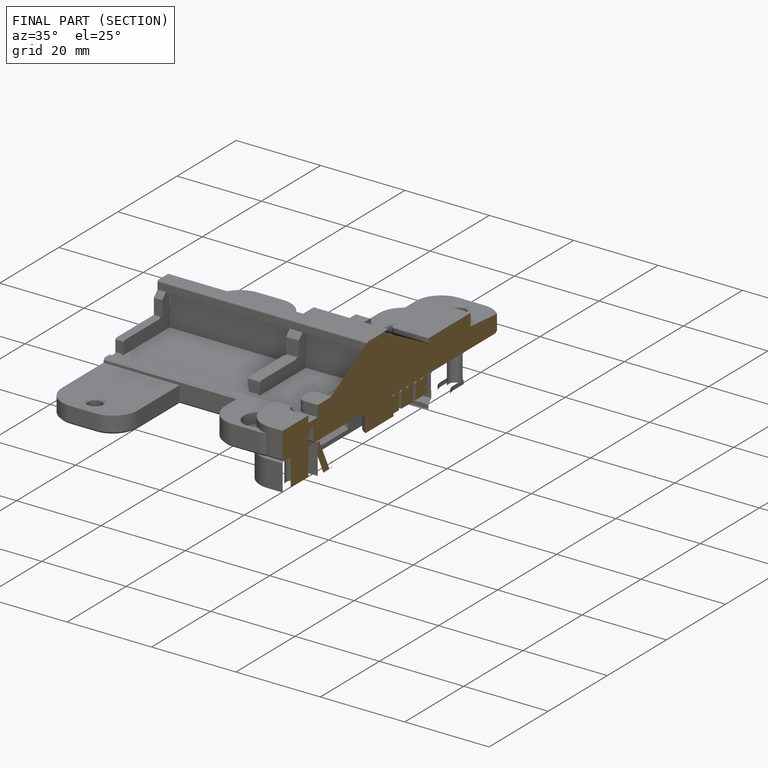
[diagram: finished part — half-section view (interior)]
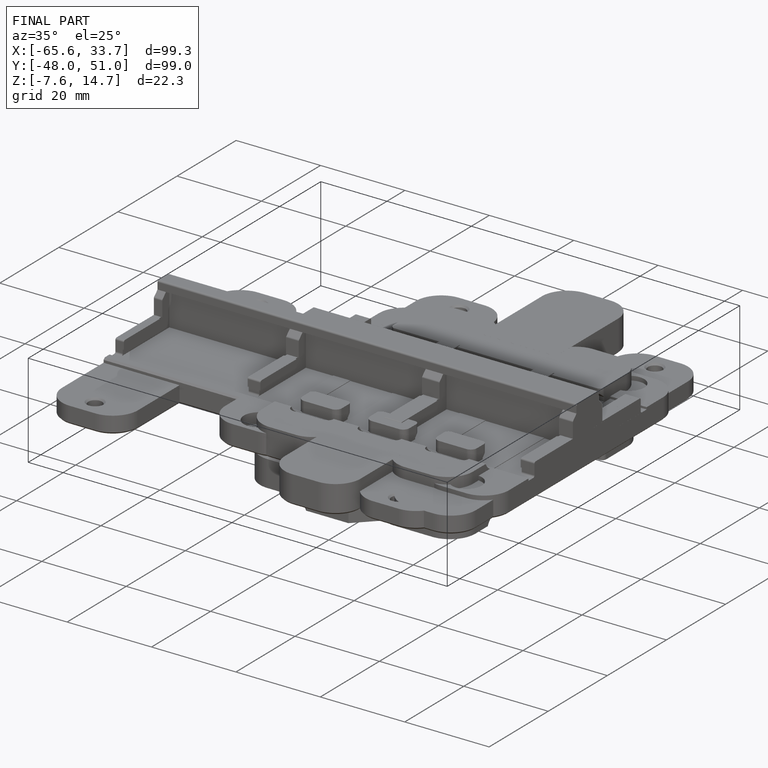
[diagram: finished part — iso view with bounding-box wireframe]
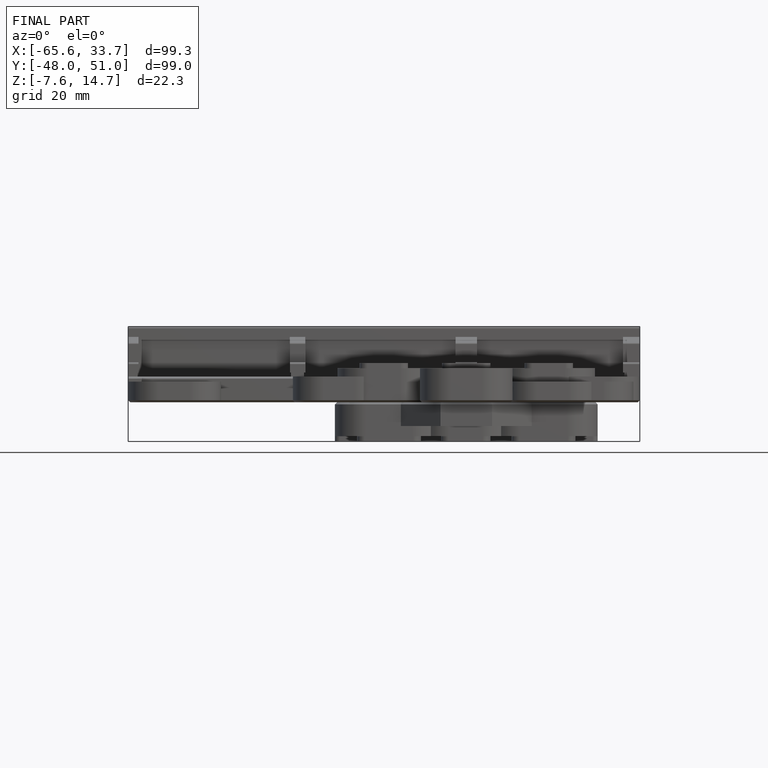
[diagram: finished part — front view with bounding-box wireframe]
